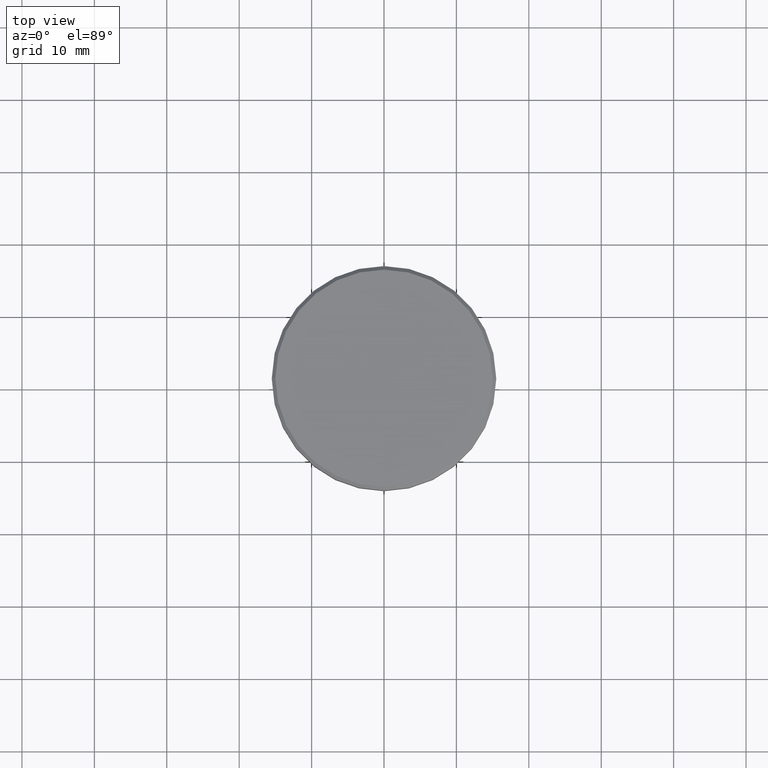
[diagram: clean part render]
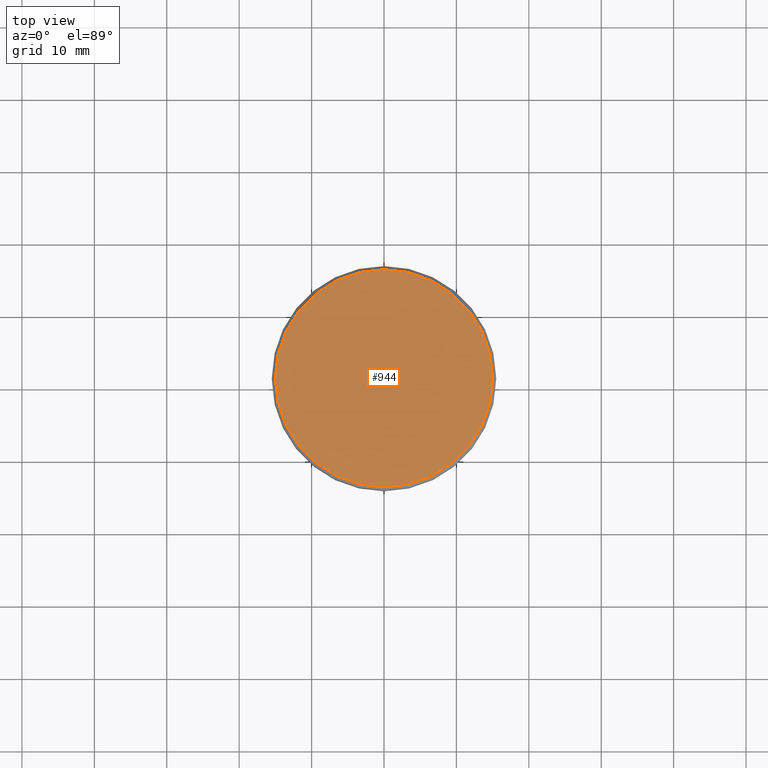
[diagram: same view with one face highlighted and labeled with its STEP entity id]
A machine part, top view. The second image highlights one B-rep face of the part: STEP entity #944.
In plain terms, the highlighted planar face has unit normal (0, -0, 1).
Its self-contained STEP definition (entity closure, byte-faithful):
#43 = CARTESIAN_POINT ( 'NONE',  ( 15.00000000000000000, 1.867586368699713376E-15, 0.000000000000000000 ) ) ;
#65 = AXIS2_PLACEMENT_3D ( 'NONE', #634, #1034, #508 ) ;
#132 = FACE_OUTER_BOUND ( 'NONE', #134, .T. ) ;
#134 = EDGE_LOOP ( 'NONE', ( #1145, #277 ) ) ;
#161 = DIRECTION ( 'NONE',  ( -0.000000000000000000, -0.000000000000000000, 1.000000000000000000 ) ) ;
#211 = CIRCLE ( 'NONE', #286, 15.00000000000000000 ) ;
#233 = CIRCLE ( 'NONE', #65, 15.00000000000000000 ) ;
#277 = ORIENTED_EDGE ( 'NONE', *, *, #700, .T. ) ;
#286 = AXIS2_PLACEMENT_3D ( 'NONE', #627, #161, #907 ) ;
#410 = CARTESIAN_POINT ( 'NONE',  ( -15.00000000000000000, 0.000000000000000000, 0.000000000000000000 ) ) ;
#502 = VERTEX_POINT ( 'NONE', #43 ) ;
#508 = DIRECTION ( 'NONE',  ( 1.000000000000000000, 0.000000000000000000, 0.000000000000000000 ) ) ;
#607 = PLANE ( 'NONE',  #1175 ) ;
#627 = CARTESIAN_POINT ( 'NONE',  ( 0.000000000000000000, 0.000000000000000000, 0.000000000000000000 ) ) ;
#634 = CARTESIAN_POINT ( 'NONE',  ( 0.000000000000000000, 0.000000000000000000, 0.000000000000000000 ) ) ;
#645 = VERTEX_POINT ( 'NONE', #410 ) ;
#700 = EDGE_CURVE ( 'NONE', #502, #645, #211, .T. ) ;
#707 = EDGE_CURVE ( 'NONE', #645, #502, #233, .T. ) ;
#806 = DIRECTION ( 'NONE',  ( 1.000000000000000000, 0.000000000000000000, 0.000000000000000000 ) ) ;
#907 = DIRECTION ( 'NONE',  ( 1.000000000000000000, 0.000000000000000000, 0.000000000000000000 ) ) ;
#944 = ADVANCED_FACE ( 'NONE', ( #132 ), #607, .T. ) ;
#987 = DIRECTION ( 'NONE',  ( 0.000000000000000000, -0.000000000000000000, 1.000000000000000000 ) ) ;
#1034 = DIRECTION ( 'NONE',  ( -0.000000000000000000, -0.000000000000000000, 1.000000000000000000 ) ) ;
#1077 = CARTESIAN_POINT ( 'NONE',  ( 0.000000000000000000, 0.000000000000000000, 0.000000000000000000 ) ) ;
#1145 = ORIENTED_EDGE ( 'NONE', *, *, #707, .T. ) ;
#1175 = AXIS2_PLACEMENT_3D ( 'NONE', #1077, #987, #806 ) ;